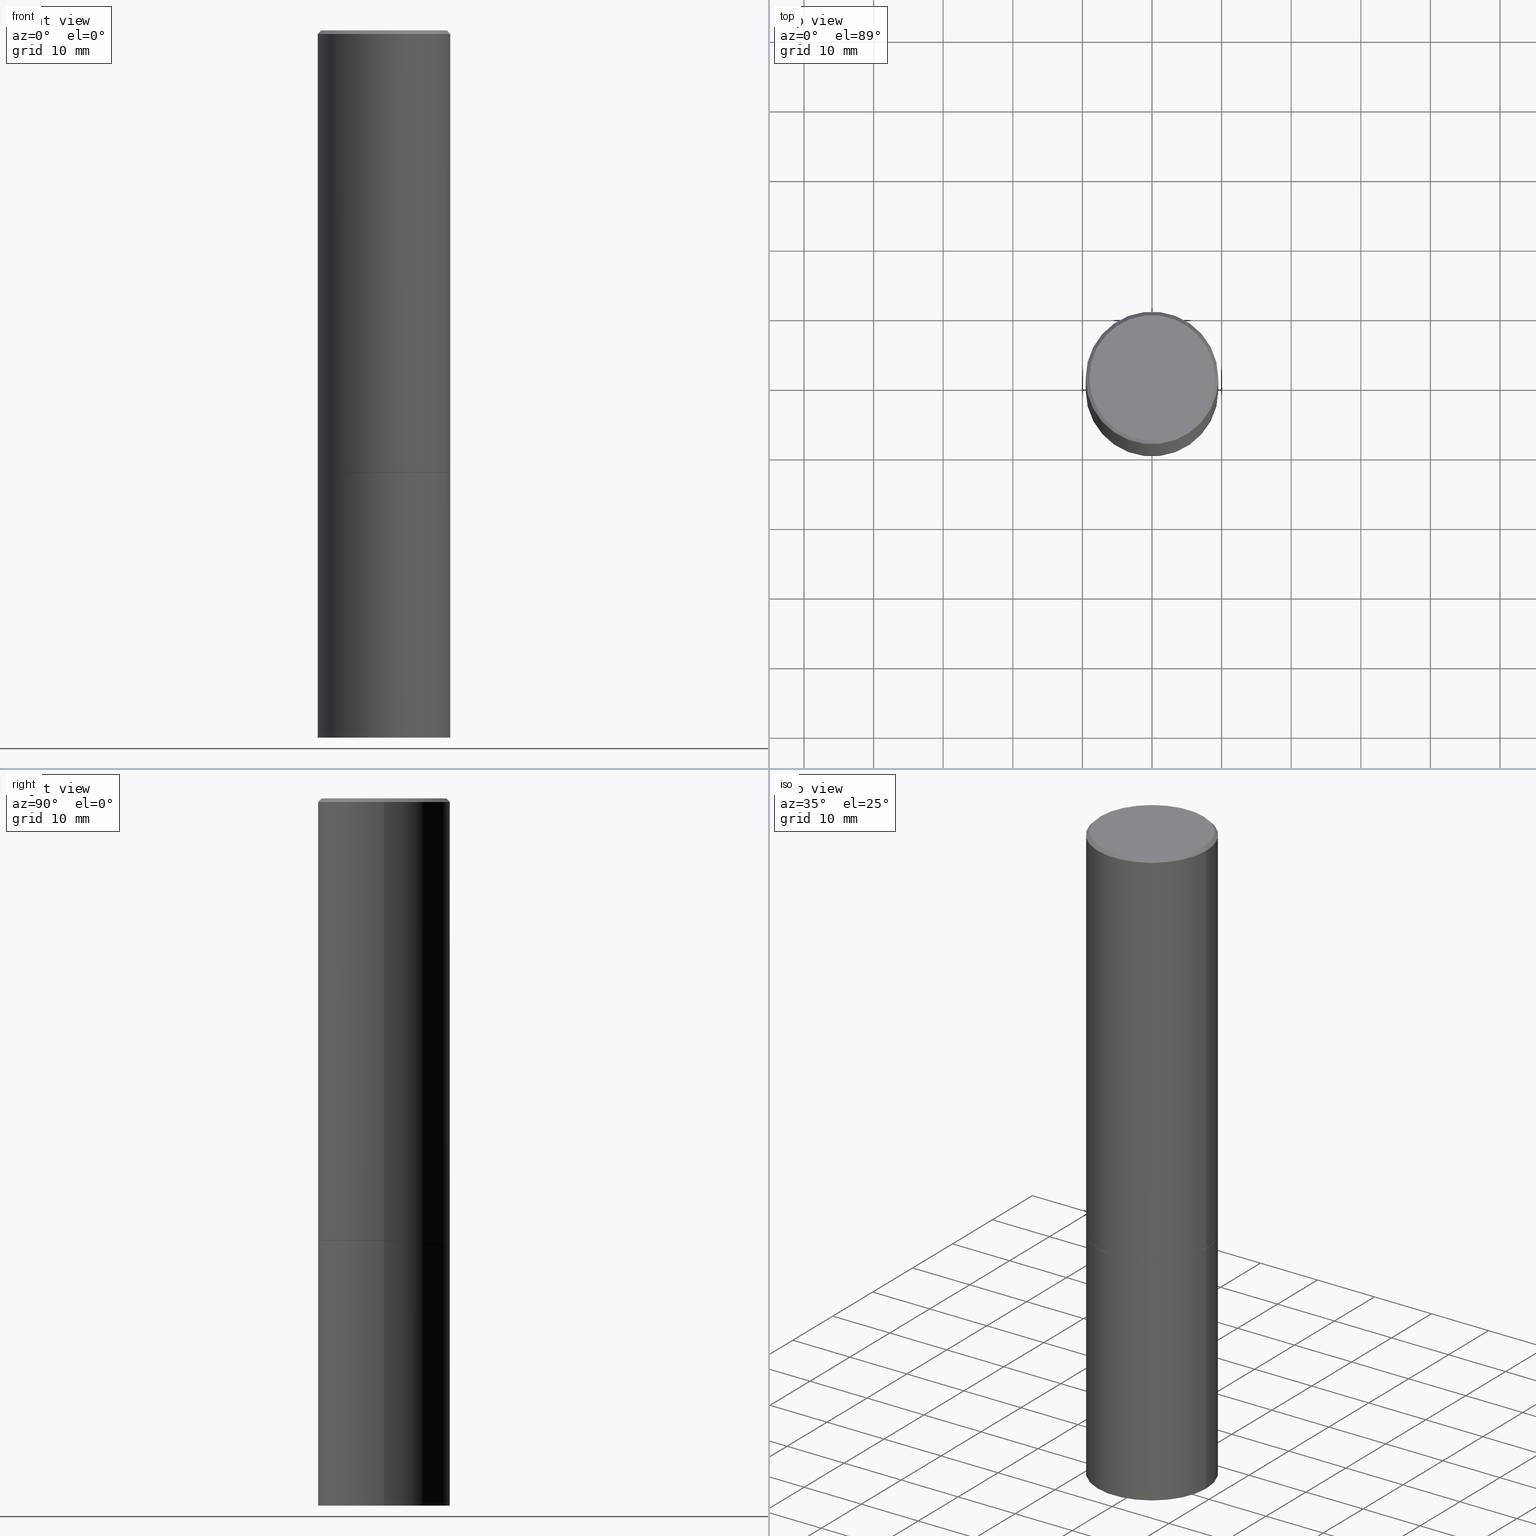
[diagram: canonical four-view strip — front | top / right | iso, engineering-drawing reading convention]
A machine part, canonical four-view strip (front | top / right | iso — engineering-drawing reading convention). The complete STEP part file that produces these views, byte-faithful:
ISO-10303-21;
HEADER;
FILE_DESCRIPTION (( 'STEP AP203' ),
    '1' );
FILE_NAME ('39071.STEP',
    '2023-03-21T20:50:16',
    ( '' ),
    ( '' ),
    'SwSTEP 2.0',
    'SolidWorks 2022',
    '' );
FILE_SCHEMA (( 'CONFIG_CONTROL_DESIGN' ));
ENDSEC;

DATA;
#1 = CIRCLE ( 'NONE', #192, 0.3749999999999997780 ) ;
#2 = EDGE_CURVE ( 'NONE', #250, #134, #180, .T. ) ;
#3 = ADVANCED_FACE ( 'NONE', ( #355 ), #309, .T. ) ;
#4 = CARTESIAN_POINT ( 'NONE',  ( 4.890937612370297681E-31, -6.982962677686324889E-17, -0.02000000000000009756 ) ) ;
#5 = EDGE_LOOP ( 'NONE', ( #73, #370, #233, #38 ) ) ;
#6 = ORIENTED_EDGE ( 'NONE', *, *, #2, .T. ) ;
#7 = AXIS2_PLACEMENT_3D ( 'NONE', #169, #75, #314 ) ;
#8 = CONICAL_SURFACE ( 'NONE', #66, 0.3739999999999999991, 0.7853981633975507526 ) ;
#9 = VERTEX_POINT ( 'NONE', #215 ) ;
#10 = PERSON_AND_ORGANIZATION_ROLE ( 'creator' ) ;
#11 = VERTEX_POINT ( 'NONE', #235 ) ;
#12 =( NAMED_UNIT ( * ) SI_UNIT ( $, .STERADIAN. ) SOLID_ANGLE_UNIT ( ) );
#13 = DIRECTION ( 'NONE',  ( -2.445468806185136597E-29, 3.491481338843145583E-15, 1.000000000000000000 ) ) ;
#14 = DIRECTION ( 'NONE',  ( 0.7071067811866199593, -2.468850131083015945E-15, 0.7071067811864750752 ) ) ;
#15 = CARTESIAN_POINT ( 'NONE',  ( -9.365030858990854092E-19, -1.389730756160623425E-14, -3.980347082768862066 ) ) ;
#16 = DIRECTION ( 'NONE',  ( -1.000000000000000000, 6.982962677686265922E-15, -4.876176775795935793E-29 ) ) ;
#17 = DATE_AND_TIME ( #177, #334 ) ;
#18 = FACE_OUTER_BOUND ( 'NONE', #70, .T. ) ;
#19 = AXIS2_PLACEMENT_3D ( 'NONE', #197, #166, #190 ) ;
#20 = FACE_OUTER_BOUND ( 'NONE', #175, .T. ) ;
#21 = CARTESIAN_POINT ( 'NONE',  ( 9.733160672091556656E-29, -1.389824406469223150E-14, -3.980347082768862066 ) ) ;
#22 = CYLINDRICAL_SURFACE ( 'NONE', #310, 0.3749999999999998890 ) ;
#23 = DIRECTION ( 'NONE',  ( -2.445468806185136597E-29, 3.491481338843145583E-15, 1.000000000000000000 ) ) ;
#24 = EDGE_CURVE ( 'NONE', #35, #250, #301, .T. ) ;
#25 = CARTESIAN_POINT ( 'NONE',  ( 0.3749999999999997780, -2.642516375941186056E-15, -0.02000000000000009756 ) ) ;
#26 = LINE ( 'NONE', #354, #128 ) ;
#27 = CARTESIAN_POINT ( 'NONE',  ( -0.3739999999999999991, -6.071273515365089465E-15, -2.500000000000000000 ) ) ;
#28 = LOCAL_TIME ( 16, 50, 16.00000000000000000, #213 ) ;
#29 = CARTESIAN_POINT ( 'NONE',  ( 0.3750000000000000555, -2.618611004132350016E-15, 1.828566290923476203E-29 ) ) ;
#30 = ORIENTED_EDGE ( 'NONE', *, *, #94, .T. ) ;
#31 = CONICAL_SURFACE ( 'NONE', #302, 0.3739999999999999991, 0.7853981633975507526 ) ;
#32 = EDGE_CURVE ( 'NONE', #250, #35, #308, .T. ) ;
#33 = DIRECTION ( 'NONE',  ( -2.445468806185136597E-29, 3.491481338843145583E-15, 1.000000000000000000 ) ) ;
#34 = DESIGN_CONTEXT ( 'detailed design', #159, 'design' ) ;
#35 = VERTEX_POINT ( 'NONE', #137 ) ;
#36 = ORIENTED_EDGE ( 'NONE', *, *, #165, .T. ) ;
#37 = AXIS2_PLACEMENT_3D ( 'NONE', #89, #13, #297 ) ;
#38 = ORIENTED_EDGE ( 'NONE', *, *, #369, .T. ) ;
#39 = PRODUCT_DEFINITION_SHAPE ( 'NONE', 'NONE',  #154 ) ;
#40 = ORIENTED_EDGE ( 'NONE', *, *, #24, .F. ) ;
#41 = VERTEX_POINT ( 'NONE', #344 ) ;
#42 = CARTESIAN_POINT ( 'NONE',  ( 6.111226546656657010E-29, -8.725211865769021935E-15, -2.499000000000000110 ) ) ;
#43 = AXIS2_PLACEMENT_3D ( 'NONE', #384, #96, #329 ) ;
#44 = ADVANCED_FACE ( 'NONE', ( #60 ), #202, .T. ) ;
#45 = APPLICATION_CONTEXT ( 'configuration controlled 3d designs of mechanical parts and assemblies' ) ;
#46 = DIRECTION ( 'NONE',  ( -2.445468806185136597E-29, 3.491481338843145583E-15, 1.000000000000000000 ) ) ;
#47 = APPROVAL_DATE_TIME ( #204, #71 ) ;
#48 = CARTESIAN_POINT ( 'NONE',  ( -0.3749999999999998890, 2.664535259100374908E-15, -1.844600658845589038E-29 ) ) ;
#49 = DIRECTION ( 'NONE',  ( 2.438088387897960049E-29, -3.491481338843145188E-15, -1.000000000000000000 ) ) ;
#50 = PERSON_AND_ORGANIZATION ( #109, #368 ) ;
#51 = CARTESIAN_POINT ( 'NONE',  ( 6.113672015462842613E-29, -8.728703347107864943E-15, -2.500000000000000000 ) ) ;
#52 = CARTESIAN_POINT ( 'NONE',  ( 9.781875224740546387E-29, -1.396592535537258233E-14, -4.000000000000000000 ) ) ;
#53 = ORIENTED_EDGE ( 'NONE', *, *, #220, .F. ) ;
#54 = DATE_AND_TIME ( #292, #28 ) ;
#55 = CIRCLE ( 'NONE', #216, 0.3549999999999997047 ) ;
#56 = DIRECTION ( 'NONE',  ( 1.000000000000000000, -6.982962677686265922E-15, 4.876176775795935793E-29 ) ) ;
#57 = AXIS2_PLACEMENT_3D ( 'NONE', #240, #58, #184 ) ;
#58 = DIRECTION ( 'NONE',  ( -2.445468806185136597E-29, 3.491481338843145583E-15, 1.000000000000000000 ) ) ;
#59 = ORIENTED_EDGE ( 'NONE', *, *, #99, .T. ) ;
#60 = FACE_OUTER_BOUND ( 'NONE', #304, .T. ) ;
#61 = APPROVAL ( #342, 'UNSPECIFIED' ) ;
#62 = CARTESIAN_POINT ( 'NONE',  ( 1.060121140848089932E-27, -1.513572027916513369E-13, -43.35042582292633995 ) ) ;
#63 = CARTESIAN_POINT ( 'NONE',  ( 0.000000000000000000, 0.000000000000000000, 0.000000000000000000 ) ) ;
#64 = CARTESIAN_POINT ( 'NONE',  ( 0.3750000000000000555, -1.134382286990137195E-14, -2.499000000000000110 ) ) ;
#65 = AXIS2_PLACEMENT_3D ( 'NONE', #85, #151, #214 ) ;
#66 = AXIS2_PLACEMENT_3D ( 'NONE', #51, #178, #142 ) ;
#67 = SECURITY_CLASSIFICATION ( '', '', #163 ) ;
#68 = ORIENTED_EDGE ( 'NONE', *, *, #147, .T. ) ;
#69 = VERTEX_POINT ( 'NONE', #150 ) ;
#70 = EDGE_LOOP ( 'NONE', ( #101, #77 ) ) ;
#71 = APPROVAL ( #265, 'UNSPECIFIED' ) ;
#72 = ORIENTED_EDGE ( 'NONE', *, *, #271, .T. ) ;
#73 = ORIENTED_EDGE ( 'NONE', *, *, #258, .F. ) ;
#74 = PERSON_AND_ORGANIZATION ( #109, #368 ) ;
#75 = DIRECTION ( 'NONE',  ( -2.445468806185136597E-29, 3.491481338843145583E-15, 1.000000000000000000 ) ) ;
#76 = DATE_AND_TIME ( #338, #303 ) ;
#77 = ORIENTED_EDGE ( 'NONE', *, *, #211, .F. ) ;
#78 = PERSON_AND_ORGANIZATION_ROLE ( 'creator' ) ;
#79 = VECTOR ( 'NONE', #88, 39.37007874015748143 ) ;
#80 = CIRCLE ( 'NONE', #280, 0.3549999999999997047 ) ;
#81 = DIRECTION ( 'NONE',  ( 1.000000000000000000, -6.982962677686268288E-15, 0.000000000000000000 ) ) ;
#82 = EDGE_LOOP ( 'NONE', ( #196, #72, #200, #249 ) ) ;
#83 =( NAMED_UNIT ( * ) PLANE_ANGLE_UNIT ( ) SI_UNIT ( $, .RADIAN. ) );
#84 = DIRECTION ( 'NONE',  ( -1.000000000000000000, 6.982962677686265922E-15, 0.000000000000000000 ) ) ;
#85 = CARTESIAN_POINT ( 'NONE',  ( 9.781875224740546387E-29, -1.396592535537258233E-14, -4.000000000000000000 ) ) ;
#86 = CARTESIAN_POINT ( 'NONE',  ( 4.890937612370297681E-31, -6.982962677686324889E-17, -0.02000000000000009756 ) ) ;
#87 = DIRECTION ( 'NONE',  ( 0.9986295347545742773, -7.033825938271997912E-15, -0.05233595624293664594 ) ) ;
#88 = DIRECTION ( 'NONE',  ( -2.445468806185136877E-29, 3.491481338843145188E-15, 1.000000000000000000 ) ) ;
#89 = CARTESIAN_POINT ( 'NONE',  ( 6.113672015462842613E-29, -8.728703347107864943E-15, -2.500000000000000000 ) ) ;
#90 = CC_DESIGN_PERSON_AND_ORGANIZATION_ASSIGNMENT ( #146, #107, ( #254 ) ) ;
#91 = AXIS2_PLACEMENT_3D ( 'NONE', #86, #325, #241 ) ;
#92 = VECTOR ( 'NONE', #179, 39.37007874015748143 ) ;
#93 = APPROVAL_PERSON_ORGANIZATION ( #230, #61, #278 ) ;
#94 = EDGE_CURVE ( 'NONE', #127, #250, #290, .T. ) ;
#95 = LINE ( 'NONE', #48, #102 ) ;
#96 = DIRECTION ( 'NONE',  ( -2.445468806185136597E-29, 3.491481338843145583E-15, 1.000000000000000000 ) ) ;
#97 = LINE ( 'NONE', #29, #182 ) ;
#98 = ORIENTED_EDGE ( 'NONE', *, *, #271, .F. ) ;
#99 = EDGE_CURVE ( 'NONE', #69, #41, #55, .T. ) ;
#100 = VERTEX_POINT ( 'NONE', #21 ) ;
#101 = ORIENTED_EDGE ( 'NONE', *, *, #313, .F. ) ;
#102 = VECTOR ( 'NONE', #377, 39.37007874015748143 ) ;
#103 = PERSON_AND_ORGANIZATION_ROLE ( 'classification_officer' ) ;
#104 = ORIENTED_EDGE ( 'NONE', *, *, #173, .T. ) ;
#105 = EDGE_LOOP ( 'NONE', ( #124, #209, #164, #53 ) ) ;
#106 = DIRECTION ( 'NONE',  ( -2.445468806185136597E-29, 3.491481338843145583E-15, 1.000000000000000000 ) ) ;
#107 = PERSON_AND_ORGANIZATION_ROLE ( 'design_owner' ) ;
#108 = CONICAL_SURFACE ( 'NONE', #19, 751.2258538476709191, 1.518436449235073926 ) ;
#109 = PERSON ( 'UNSPECIFIED', 'UNSPECIFIED', 'UNSPECIFIED', ('UNSPECIFIED'), ('UNSPECIFIED'), ('UNSPECIFIED') ) ;
#110 = LOCAL_TIME ( 16, 50, 16.00000000000000000, #374 ) ;
#111 = DIRECTION ( 'NONE',  ( -1.000000000000000000, 6.982962677686265922E-15, 0.000000000000000000 ) ) ;
#112 =( CONVERSION_BASED_UNIT ( 'INCH', #229 ) LENGTH_UNIT ( ) NAMED_UNIT ( #117 ) );
#113 = LINE ( 'NONE', #27, #349 ) ;
#114 = ORIENTED_EDGE ( 'NONE', *, *, #359, .F. ) ;
#115 = DIRECTION ( 'NONE',  ( 1.000000000000000000, -6.982962677686266711E-15, 4.876176775795935793E-29 ) ) ;
#116 = AXIS2_PLACEMENT_3D ( 'NONE', #4, #305, #283 ) ;
#117 = DIMENSIONAL_EXPONENTS ( 1.000000000000000000, 0.000000000000000000, 0.000000000000000000, 0.000000000000000000, 0.000000000000000000, 0.000000000000000000, 0.000000000000000000 ) ;
#118 = DIRECTION ( 'NONE',  ( 2.438088387897960049E-29, -3.491481338843145188E-15, -1.000000000000000000 ) ) ;
#119 = VECTOR ( 'NONE', #14, 39.37007874015748143 ) ;
#120 = CC_DESIGN_DATE_AND_TIME_ASSIGNMENT ( #76, #201, ( #67 ) ) ;
#121 = AXIS2_PLACEMENT_3D ( 'NONE', #293, #356, #111 ) ;
#122 = CALENDAR_DATE ( 2023, 21, 3 ) ;
#123 = ADVANCED_FACE ( 'NONE', ( #269 ), #388, .F. ) ;
#124 = ORIENTED_EDGE ( 'NONE', *, *, #358, .F. ) ;
#125 = ORIENTED_EDGE ( 'NONE', *, *, #286, .F. ) ;
#126 = EDGE_LOOP ( 'NONE', ( #98, #311, #30, #40 ) ) ;
#127 = VERTEX_POINT ( 'NONE', #145 ) ;
#128 = VECTOR ( 'NONE', #87, 39.37007874015748143 ) ;
#129 = ADVANCED_FACE ( 'NONE', ( #272 ), #260, .F. ) ;
#130 = PERSON_AND_ORGANIZATION ( #109, #368 ) ;
#131 = EDGE_LOOP ( 'NONE', ( #59, #381 ) ) ;
#132 = MANIFOLD_SOLID_BREP ( 'Body-Move/Copy2[1]', #245 ) ;
#133 = CARTESIAN_POINT ( 'NONE',  ( 6.113672015462842613E-29, -8.728703347107864943E-15, -2.500000000000000000 ) ) ;
#134 = VERTEX_POINT ( 'NONE', #365 ) ;
#135 = DIRECTION ( 'NONE',  ( -2.438088387897960049E-29, 3.491481338843145188E-15, 1.000000000000000000 ) ) ;
#136 = CARTESIAN_POINT ( 'NONE',  ( -0.3750000000000001665, -1.134731435124022916E-14, -4.000000000000000000 ) ) ;
#137 = CARTESIAN_POINT ( 'NONE',  ( -0.3750000000000000555, -1.732985487172564750E-15, -2.499000000000000110 ) ) ;
#138 = EDGE_CURVE ( 'NONE', #35, #224, #95, .T. ) ;
#139 = APPROVAL_DATE_TIME ( #17, #296 ) ;
#140 = CIRCLE ( 'NONE', #37, 0.3750000000000000555 ) ;
#141 = AXIS2_PLACEMENT_3D ( 'NONE', #187, #33, #160 ) ;
#142 = DIRECTION ( 'NONE',  ( 1.000000000000000000, -6.982962677686268288E-15, 0.000000000000000000 ) ) ;
#143 = CC_DESIGN_APPROVAL ( #296, ( #227 ) ) ;
#144 = DIRECTION ( 'NONE',  ( -0.9986295347545742773, 6.790662755453667677E-15, -0.05233595624293664594 ) ) ;
#145 = CARTESIAN_POINT ( 'NONE',  ( 0.3739999999999999991, -1.134033138856252894E-14, -2.500000000000000000 ) ) ;
#146 = PERSON_AND_ORGANIZATION ( #109, #368 ) ;
#147 = EDGE_CURVE ( 'NONE', #100, #167, #289, .T. ) ;
#148 = EDGE_LOOP ( 'NONE', ( #256, #36, #125, #228 ) ) ;
#149 = DIRECTION ( 'NONE',  ( -2.445468806185136597E-29, 3.491481338843145583E-15, 1.000000000000000000 ) ) ;
#150 = CARTESIAN_POINT ( 'NONE',  ( -0.3549999999999997047, 2.513866563967053491E-15, -1.745853245838993482E-29 ) ) ;
#151 = DIRECTION ( 'NONE',  ( -2.445468806185136597E-29, 3.491481338843145583E-15, 1.000000000000000000 ) ) ;
#152 = ADVANCED_FACE ( 'NONE', ( #387 ), #323, .T. ) ;
#153 =( GEOMETRIC_REPRESENTATION_CONTEXT ( 3 ) GLOBAL_UNCERTAINTY_ASSIGNED_CONTEXT ( ( #326 ) ) GLOBAL_UNIT_ASSIGNED_CONTEXT ( ( #112, #83, #12 ) ) REPRESENTATION_CONTEXT ( 'NONE', 'WORKASPACE' ) );
#154 = PRODUCT_DEFINITION ( 'UNKNOWN', '', #227, #34 ) ;
#155 = EDGE_LOOP ( 'NONE', ( #281, #282 ) ) ;
#156 = CC_DESIGN_PERSON_AND_ORGANIZATION_ASSIGNMENT ( #318, #78, ( #154 ) ) ;
#157 = FACE_OUTER_BOUND ( 'NONE', #148, .T. ) ;
#158 = CONICAL_SURFACE ( 'NONE', #121, 0.3749999999999997780, 0.7853981633974473908 ) ;
#159 = APPLICATION_CONTEXT ( 'configuration controlled 3d designs of mechanical parts and assemblies' ) ;
#160 = DIRECTION ( 'NONE',  ( 1.000000000000000000, -6.982962677686265922E-15, 4.876176775795935793E-29 ) ) ;
#161 = CARTESIAN_POINT ( 'NONE',  ( 4.890937612370297681E-31, -6.982962677686324889E-17, -0.02000000000000009756 ) ) ;
#162 = LOCAL_TIME ( 16, 50, 16.00000000000000000, #237 ) ;
#163 = SECURITY_CLASSIFICATION_LEVEL ( 'unclassified' ) ;
#164 = ORIENTED_EDGE ( 'NONE', *, *, #359, .T. ) ;
#165 = EDGE_CURVE ( 'NONE', #167, #9, #263, .T. ) ;
#166 = DIRECTION ( 'NONE',  ( 2.445468806185136597E-29, -3.491481338843145583E-15, -1.000000000000000000 ) ) ;
#167 = VERTEX_POINT ( 'NONE', #136 ) ;
#168 = EDGE_LOOP ( 'NONE', ( #222, #312, #346 ) ) ;
#169 = CARTESIAN_POINT ( 'NONE',  ( 6.111226546656657010E-29, -8.725211865769021935E-15, -2.499000000000000110 ) ) ;
#170 = AXIS2_PLACEMENT_3D ( 'NONE', #321, #317, #261 ) ;
#171 = APPLICATION_PROTOCOL_DEFINITION ( 'international standard', 'config_control_design', 1994, #159 ) ;
#172 = CARTESIAN_POINT ( 'NONE',  ( 0.000000000000000000, 0.000000000000000000, 0.000000000000000000 ) ) ;
#173 = EDGE_CURVE ( 'NONE', #167, #191, #324, .T. ) ;
#174 = CARTESIAN_POINT ( 'NONE',  ( -0.3739999999999999991, -6.065975061016867852E-15, -2.500000000000000000 ) ) ;
#175 = EDGE_LOOP ( 'NONE', ( #231, #279, #114, #284 ) ) ;
#176 = EDGE_CURVE ( 'NONE', #9, #11, #140, .T. ) ;
#177 = CALENDAR_DATE ( 2023, 21, 3 ) ;
#178 = DIRECTION ( 'NONE',  ( -2.445468806185136597E-29, 3.491481338843145583E-15, 1.000000000000000000 ) ) ;
#179 = DIRECTION ( 'NONE',  ( -2.445468806185136877E-29, 3.491481338843145188E-15, 1.000000000000000000 ) ) ;
#180 = LINE ( 'NONE', #298, #79 ) ;
#181 = DATE_TIME_ROLE ( 'creation_date' ) ;
#182 = VECTOR ( 'NONE', #246, 39.37007874015748143 ) ;
#183 = CARTESIAN_POINT ( 'NONE',  ( 6.113672015462842613E-29, -8.728703347107864943E-15, -2.500000000000000000 ) ) ;
#184 = DIRECTION ( 'NONE',  ( 1.000000000000000000, -6.982962677686266711E-15, 4.876176775795935793E-29 ) ) ;
#185 = DIRECTION ( 'NONE',  ( 0.7071067811865469066, -7.319954787623254468E-15, -0.7071067811865482389 ) ) ;
#186 = EDGE_LOOP ( 'NONE', ( #252, #68, #337 ) ) ;
#187 = CARTESIAN_POINT ( 'NONE',  ( 0.000000000000000000, 0.000000000000000000, 0.000000000000000000 ) ) ;
#188 = DIRECTION ( 'NONE',  ( -1.000000000000000000, 6.982962677686265922E-15, -4.876176775795935793E-29 ) ) ;
#189 = ADVANCED_FACE ( 'NONE', ( #20 ), #22, .T. ) ;
#190 = DIRECTION ( 'NONE',  ( -1.000000000000000000, 6.982962677686265922E-15, 0.000000000000000000 ) ) ;
#191 = VERTEX_POINT ( 'NONE', #206 ) ;
#192 = AXIS2_PLACEMENT_3D ( 'NONE', #161, #225, #373 ) ;
#193 = ADVANCED_FACE ( 'NONE', ( #379 ), #158, .T. ) ;
#194 = CC_DESIGN_SECURITY_CLASSIFICATION ( #67, ( #227 ) ) ;
#195 = SHAPE_DEFINITION_REPRESENTATION ( #39, #375 ) ;
#196 = ORIENTED_EDGE ( 'NONE', *, *, #313, .T. ) ;
#197 = CARTESIAN_POINT ( 'NONE',  ( 1.060121140848089932E-27, -1.513572027916513369E-13, -43.35042582292633995 ) ) ;
#198 = PERSON_AND_ORGANIZATION_ROLE ( 'design_supplier' ) ;
#199 = CC_DESIGN_PERSON_AND_ORGANIZATION_ASSIGNMENT ( #74, #103, ( #67 ) ) ;
#200 = ORIENTED_EDGE ( 'NONE', *, *, #32, .F. ) ;
#201 = DATE_TIME_ROLE ( 'classification_date' ) ;
#202 = CYLINDRICAL_SURFACE ( 'NONE', #340, 0.3750000000000000555 ) ;
#203 = CC_DESIGN_APPROVAL ( #71, ( #154 ) ) ;
#204 = DATE_AND_TIME ( #382, #162 ) ;
#205 = ADVANCED_FACE ( 'NONE', ( #327 ), #31, .T. ) ;
#206 = CARTESIAN_POINT ( 'NONE',  ( 0.3750000000000001665, -1.653861210453690509E-14, -4.000000000000000000 ) ) ;
#207 = MECHANICAL_CONTEXT ( 'NONE', #45, 'mechanical' ) ;
#208 = FACE_OUTER_BOUND ( 'NONE', #186, .T. ) ;
#209 = ORIENTED_EDGE ( 'NONE', *, *, #258, .T. ) ;
#210 = DIRECTION ( 'NONE',  ( 1.000000000000000000, -6.982962677686268288E-15, 0.000000000000000000 ) ) ;
#211 = EDGE_CURVE ( 'NONE', #243, #127, #270, .T. ) ;
#212 = CARTESIAN_POINT ( 'NONE',  ( 0.3739999999999999991, -1.134033138856252894E-14, -2.500000000000000000 ) ) ;
#213 = COORDINATED_UNIVERSAL_TIME_OFFSET ( 5, 0, .BEHIND. ) ;
#214 = DIRECTION ( 'NONE',  ( 1.000000000000000000, -6.982962677686266711E-15, 0.000000000000000000 ) ) ;
#215 = CARTESIAN_POINT ( 'NONE',  ( -0.3750000000000000555, -8.682779092139847151E-15, -2.500000000000000000 ) ) ;
#216 = AXIS2_PLACEMENT_3D ( 'NONE', #264, #106, #274 ) ;
#217 = EDGE_CURVE ( 'NONE', #100, #191, #26, .T. ) ;
#218 = VECTOR ( 'NONE', #232, 39.37007874015748143 ) ;
#219 = EDGE_CURVE ( 'NONE', #191, #167, #255, .T. ) ;
#220 = EDGE_CURVE ( 'NONE', #69, #224, #275, .T. ) ;
#221 = AXIS2_PLACEMENT_3D ( 'NONE', #183, #266, #239 ) ;
#222 = ORIENTED_EDGE ( 'NONE', *, *, #147, .F. ) ;
#223 = COORDINATED_UNIVERSAL_TIME_OFFSET ( 5, 0, .BEHIND. ) ;
#224 = VERTEX_POINT ( 'NONE', #345 ) ;
#225 = DIRECTION ( 'NONE',  ( -2.445468806185136597E-29, 3.491481338843145583E-15, 1.000000000000000000 ) ) ;
#226 = CC_DESIGN_PERSON_AND_ORGANIZATION_ASSIGNMENT ( #130, #10, ( #227 ) ) ;
#227 = PRODUCT_DEFINITION_FORMATION_WITH_SPECIFIED_SOURCE ( 'ANY', '', #254, .NOT_KNOWN. ) ;
#228 = ORIENTED_EDGE ( 'NONE', *, *, #328, .F. ) ;
#229 = LENGTH_MEASURE_WITH_UNIT ( LENGTH_MEASURE( 0.02539999999999999897 ), #251 );
#230 = PERSON_AND_ORGANIZATION ( #109, #368 ) ;
#231 = ORIENTED_EDGE ( 'NONE', *, *, #32, .T. ) ;
#232 = DIRECTION ( 'NONE',  ( -0.7071067811865469066, 2.468850131082249961E-15, -0.7071067811865482389 ) ) ;
#233 = ORIENTED_EDGE ( 'NONE', *, *, #220, .T. ) ;
#234 = APPLICATION_PROTOCOL_DEFINITION ( 'international standard', 'config_control_design', 1994, #45 ) ;
#235 = CARTESIAN_POINT ( 'NONE',  ( 0.3750000000000000555, -1.134731435124021338E-14, -2.500000000000000000 ) ) ;
#236 = CONICAL_SURFACE ( 'NONE', #357, 751.2258538476709191, 1.518436449235073926 ) ;
#237 = COORDINATED_UNIVERSAL_TIME_OFFSET ( 5, 0, .BEHIND. ) ;
#238 = ADVANCED_FACE ( 'NONE', ( #157 ), #360, .T. ) ;
#239 = DIRECTION ( 'NONE',  ( 1.000000000000000000, -6.982962677686264344E-15, 0.000000000000000000 ) ) ;
#240 = CARTESIAN_POINT ( 'NONE',  ( 0.000000000000000000, 0.000000000000000000, 0.000000000000000000 ) ) ;
#241 = DIRECTION ( 'NONE',  ( -1.000000000000000000, 6.982962677686265922E-15, 0.000000000000000000 ) ) ;
#242 = DIRECTION ( 'NONE',  ( -2.445468806185136597E-29, 3.491481338843145583E-15, 1.000000000000000000 ) ) ;
#243 = VERTEX_POINT ( 'NONE', #174 ) ;
#244 = DIRECTION ( 'NONE',  ( -0.7071067811866199593, 7.493145998870616062E-15, 0.7071067811864750752 ) ) ;
#245 = CLOSED_SHELL ( 'NONE', ( #238, #366, #248, #44, #129 ) ) ;
#246 = DIRECTION ( 'NONE',  ( -2.445468806185136877E-29, 3.491481338843145188E-15, 1.000000000000000000 ) ) ;
#247 = CIRCLE ( 'NONE', #116, 0.3749999999999997780 ) ;
#248 = ADVANCED_FACE ( 'NONE', ( #208 ), #236, .F. ) ;
#249 = ORIENTED_EDGE ( 'NONE', *, *, #94, .F. ) ;
#250 = VERTEX_POINT ( 'NONE', #64 ) ;
#251 =( LENGTH_UNIT ( ) NAMED_UNIT ( * ) SI_UNIT ( $, .METRE. ) );
#252 = ORIENTED_EDGE ( 'NONE', *, *, #217, .F. ) ;
#253 = ORIENTED_EDGE ( 'NONE', *, *, #176, .F. ) ;
#254 = PRODUCT ( '39071', '39071', '', ( #207 ) ) ;
#255 = CIRCLE ( 'NONE', #65, 0.3750000000000000555 ) ;
#256 = ORIENTED_EDGE ( 'NONE', *, *, #219, .T. ) ;
#257 = DIRECTION ( 'NONE',  ( 1.000000000000000000, -6.982962677686265922E-15, 4.876176775795935793E-29 ) ) ;
#258 = EDGE_CURVE ( 'NONE', #41, #134, #322, .T. ) ;
#259 = PERSON_AND_ORGANIZATION ( #109, #368 ) ;
#260 = PLANE ( 'NONE',  #333 ) ;
#261 = DIRECTION ( 'NONE',  ( 1.000000000000000000, 0.000000000000000000, 0.000000000000000000 ) ) ;
#262 = PLANE ( 'NONE',  #341 ) ;
#263 = LINE ( 'NONE', #385, #92 ) ;
#264 = CARTESIAN_POINT ( 'NONE',  ( 0.000000000000000000, 0.000000000000000000, 0.000000000000000000 ) ) ;
#265 = APPROVAL_STATUS ( 'not_yet_approved' ) ;
#266 = DIRECTION ( 'NONE',  ( -2.445468806185136597E-29, 3.491481338843145583E-15, 1.000000000000000000 ) ) ;
#267 = ORIENTED_EDGE ( 'NONE', *, *, #369, .F. ) ;
#268 = DIRECTION ( 'NONE',  ( 1.000000000000000000, -6.982962677686266711E-15, 0.000000000000000000 ) ) ;
#269 = FACE_OUTER_BOUND ( 'NONE', #131, .T. ) ;
#270 = CIRCLE ( 'NONE', #316, 0.3739999999999999991 ) ;
#271 = EDGE_CURVE ( 'NONE', #243, #35, #113, .T. ) ;
#272 = FACE_OUTER_BOUND ( 'NONE', #155, .T. ) ;
#273 = DIRECTION ( 'NONE',  ( -2.445468806185136597E-29, 3.491481338843145583E-15, 1.000000000000000000 ) ) ;
#274 = DIRECTION ( 'NONE',  ( 1.000000000000000000, -6.982962677686265922E-15, 4.876176775795935793E-29 ) ) ;
#275 = LINE ( 'NONE', #389, #218 ) ;
#276 = APPROVAL_PERSON_ORGANIZATION ( #315, #296, #288 ) ;
#277 = DIRECTION ( 'NONE',  ( -2.445468806185136597E-29, 3.491481338843145583E-15, 1.000000000000000000 ) ) ;
#278 = APPROVAL_ROLE ( '' ) ;
#279 = ORIENTED_EDGE ( 'NONE', *, *, #138, .T. ) ;
#280 = AXIS2_PLACEMENT_3D ( 'NONE', #390, #277, #257 ) ;
#281 = ORIENTED_EDGE ( 'NONE', *, *, #286, .T. ) ;
#282 = ORIENTED_EDGE ( 'NONE', *, *, #176, .T. ) ;
#283 = DIRECTION ( 'NONE',  ( 1.000000000000000000, -6.982962677686265922E-15, 0.000000000000000000 ) ) ;
#284 = ORIENTED_EDGE ( 'NONE', *, *, #2, .F. ) ;
#285 = ADVANCED_FACE ( 'NONE', ( #18 ), #262, .F. ) ;
#286 = EDGE_CURVE ( 'NONE', #11, #9, #362, .T. ) ;
#287 = CIRCLE ( 'NONE', #43, 0.3739999999999999991 ) ;
#288 = APPROVAL_ROLE ( '' ) ;
#289 = LINE ( 'NONE', #15, #294 ) ;
#290 = LINE ( 'NONE', #212, #119 ) ;
#291 = APPROVAL_STATUS ( 'not_yet_approved' ) ;
#292 = CALENDAR_DATE ( 2023, 21, 3 ) ;
#293 = CARTESIAN_POINT ( 'NONE',  ( 4.890937612370297681E-31, -6.982962677686324889E-17, -0.02000000000000009756 ) ) ;
#294 = VECTOR ( 'NONE', #144, 39.37007874015748143 ) ;
#295 = DIRECTION ( 'NONE',  ( 1.000000000000000000, -6.982962677686265922E-15, 4.876176775795935793E-29 ) ) ;
#296 = APPROVAL ( #291, 'UNSPECIFIED' ) ;
#297 = DIRECTION ( 'NONE',  ( 1.000000000000000000, -6.982962677686264344E-15, 0.000000000000000000 ) ) ;
#298 = CARTESIAN_POINT ( 'NONE',  ( 0.3749999999999998890, -2.618611004132349228E-15, 1.828566290923475362E-29 ) ) ;
#299 = DIRECTION ( 'NONE',  ( 2.445468806185136597E-29, -3.491481338843145583E-15, -1.000000000000000000 ) ) ;
#300 = AXIS2_PLACEMENT_3D ( 'NONE', #52, #149, #268 ) ;
#301 = CIRCLE ( 'NONE', #7, 0.3750000000000000555 ) ;
#302 = AXIS2_PLACEMENT_3D ( 'NONE', #133, #348, #81 ) ;
#303 = LOCAL_TIME ( 16, 50, 16.00000000000000000, #223 ) ;
#304 = EDGE_LOOP ( 'NONE', ( #335, #104, #350, #253 ) ) ;
#305 = DIRECTION ( 'NONE',  ( -2.445468806185136597E-29, 3.491481338843145583E-15, 1.000000000000000000 ) ) ;
#306 = ADVANCED_FACE ( 'NONE', ( #319 ), #8, .T. ) ;
#307 = EDGE_LOOP ( 'NONE', ( #367, #343, #6, #267 ) ) ;
#308 = CIRCLE ( 'NONE', #361, 0.3750000000000000555 ) ;
#309 = CONICAL_SURFACE ( 'NONE', #91, 0.3749999999999997780, 0.7853981633974473908 ) ;
#310 = AXIS2_PLACEMENT_3D ( 'NONE', #63, #273, #115 ) ;
#311 = ORIENTED_EDGE ( 'NONE', *, *, #211, .T. ) ;
#312 = ORIENTED_EDGE ( 'NONE', *, *, #217, .T. ) ;
#313 = EDGE_CURVE ( 'NONE', #127, #243, #287, .T. ) ;
#314 = DIRECTION ( 'NONE',  ( 1.000000000000000000, -6.982962677686264344E-15, 0.000000000000000000 ) ) ;
#315 = PERSON_AND_ORGANIZATION ( #109, #368 ) ;
#316 = AXIS2_PLACEMENT_3D ( 'NONE', #351, #242, #210 ) ;
#317 = DIRECTION ( 'NONE',  ( 0.000000000000000000, 0.000000000000000000, 1.000000000000000000 ) ) ;
#318 = PERSON_AND_ORGANIZATION ( #109, #368 ) ;
#319 = FACE_OUTER_BOUND ( 'NONE', #126, .T. ) ;
#320 = CARTESIAN_POINT ( 'NONE',  ( 2.478951750578622237E-15, 0.3549999999999997047, -1.239475875289315654E-15 ) ) ;
#321 = CARTESIAN_POINT ( 'NONE',  ( 0.000000000000000000, 0.000000000000000000, 0.000000000000000000 ) ) ;
#322 = LINE ( 'NONE', #25, #363 ) ;
#323 = CYLINDRICAL_SURFACE ( 'NONE', #57, 0.3749999999999998890 ) ;
#324 = CIRCLE ( 'NONE', #300, 0.3750000000000000555 ) ;
#325 = DIRECTION ( 'NONE',  ( 2.445468806185136597E-29, -3.491481338843145583E-15, -1.000000000000000000 ) ) ;
#326 = UNCERTAINTY_MEASURE_WITH_UNIT (LENGTH_MEASURE( 1.000000000000000082E-05 ), #112, 'distance_accuracy_value', 'NONE');
#327 = FACE_OUTER_BOUND ( 'NONE', #82, .T. ) ;
#328 = EDGE_CURVE ( 'NONE', #191, #11, #97, .T. ) ;
#329 = DIRECTION ( 'NONE',  ( 1.000000000000000000, -6.982962677686268288E-15, 0.000000000000000000 ) ) ;
#330 = CLOSED_SHELL ( 'NONE', ( #205, #189, #193, #3, #152, #306, #285, #123 ) ) ;
#331 = APPROVAL_PERSON_ORGANIZATION ( #50, #71, #347 ) ;
#332 = CC_DESIGN_PERSON_AND_ORGANIZATION_ASSIGNMENT ( #259, #198, ( #227 ) ) ;
#333 = AXIS2_PLACEMENT_3D ( 'NONE', #386, #118, #188 ) ;
#334 = LOCAL_TIME ( 16, 50, 16.00000000000000000, #378 ) ;
#335 = ORIENTED_EDGE ( 'NONE', *, *, #165, .F. ) ;
#336 = DATE_AND_TIME ( #122, #110 ) ;
#337 = ORIENTED_EDGE ( 'NONE', *, *, #219, .F. ) ;
#338 = CALENDAR_DATE ( 2023, 21, 3 ) ;
#339 = FACE_OUTER_BOUND ( 'NONE', #168, .T. ) ;
#340 = AXIS2_PLACEMENT_3D ( 'NONE', #172, #23, #295 ) ;
#341 = AXIS2_PLACEMENT_3D ( 'NONE', #376, #135, #56 ) ;
#342 = APPROVAL_STATUS ( 'not_yet_approved' ) ;
#343 = ORIENTED_EDGE ( 'NONE', *, *, #24, .T. ) ;
#344 = CARTESIAN_POINT ( 'NONE',  ( 0.3549999999999997047, -2.538996582575039076E-15, 1.754627344940449403E-29 ) ) ;
#345 = CARTESIAN_POINT ( 'NONE',  ( -0.3749999999999997780, 2.548781377355484746E-15, -0.02000000000000009756 ) ) ;
#346 = ORIENTED_EDGE ( 'NONE', *, *, #173, .F. ) ;
#347 = APPROVAL_ROLE ( '' ) ;
#348 = DIRECTION ( 'NONE',  ( -2.445468806185136597E-29, 3.491481338843145583E-15, 1.000000000000000000 ) ) ;
#349 = VECTOR ( 'NONE', #244, 39.37007874015748143 ) ;
#350 = ORIENTED_EDGE ( 'NONE', *, *, #328, .T. ) ;
#351 = CARTESIAN_POINT ( 'NONE',  ( 6.113672015462842613E-29, -8.728703347107864943E-15, -2.500000000000000000 ) ) ;
#352 = DIRECTION ( 'NONE',  ( 1.000000000000000000, -6.982962677686264344E-15, 0.000000000000000000 ) ) ;
#353 = MANIFOLD_SOLID_BREP ( 'Body-Move/Copy2[2]', #330 ) ;
#354 = CARTESIAN_POINT ( 'NONE',  ( 9.365030860937616821E-19, -1.389730756160623425E-14, -3.980347082768862066 ) ) ;
#355 = FACE_OUTER_BOUND ( 'NONE', #5, .T. ) ;
#356 = DIRECTION ( 'NONE',  ( 2.445468806185136597E-29, -3.491481338843145583E-15, -1.000000000000000000 ) ) ;
#357 = AXIS2_PLACEMENT_3D ( 'NONE', #62, #299, #84 ) ;
#358 = EDGE_CURVE ( 'NONE', #41, #69, #80, .T. ) ;
#359 = EDGE_CURVE ( 'NONE', #134, #224, #1, .T. ) ;
#360 = CYLINDRICAL_SURFACE ( 'NONE', #141, 0.3750000000000000555 ) ;
#361 = AXIS2_PLACEMENT_3D ( 'NONE', #42, #46, #352 ) ;
#362 = CIRCLE ( 'NONE', #221, 0.3750000000000000555 ) ;
#363 = VECTOR ( 'NONE', #185, 39.37007874015748143 ) ;
#364 = CC_DESIGN_APPROVAL ( #61, ( #67 ) ) ;
#365 = CARTESIAN_POINT ( 'NONE',  ( 0.3749999999999997780, -2.642516375941186056E-15, -0.02000000000000009756 ) ) ;
#366 = ADVANCED_FACE ( 'NONE', ( #339 ), #108, .F. ) ;
#367 = ORIENTED_EDGE ( 'NONE', *, *, #138, .F. ) ;
#368 = ORGANIZATION ( 'UNSPECIFIED', 'UNSPECIFIED', '' ) ;
#369 = EDGE_CURVE ( 'NONE', #224, #134, #247, .T. ) ;
#370 = ORIENTED_EDGE ( 'NONE', *, *, #99, .F. ) ;
#371 = PRODUCT_RELATED_PRODUCT_CATEGORY ( 'detail', '', ( #254 ) ) ;
#372 = APPROVAL_DATE_TIME ( #336, #61 ) ;
#373 = DIRECTION ( 'NONE',  ( 1.000000000000000000, -6.982962677686265922E-15, 0.000000000000000000 ) ) ;
#374 = COORDINATED_UNIVERSAL_TIME_OFFSET ( 5, 0, .BEHIND. ) ;
#375 = ADVANCED_BREP_SHAPE_REPRESENTATION ( '39071', ( #132, #353, #170 ), #153 ) ;
#376 = CARTESIAN_POINT ( 'NONE',  ( 6.113672015462842613E-29, -8.728703347107864943E-15, -2.500000000000000000 ) ) ;
#377 = DIRECTION ( 'NONE',  ( -2.445468806185136877E-29, 3.491481338843145188E-15, 1.000000000000000000 ) ) ;
#378 = COORDINATED_UNIVERSAL_TIME_OFFSET ( 5, 0, .BEHIND. ) ;
#379 = FACE_OUTER_BOUND ( 'NONE', #105, .T. ) ;
#380 = AXIS2_PLACEMENT_3D ( 'NONE', #320, #49, #16 ) ;
#381 = ORIENTED_EDGE ( 'NONE', *, *, #358, .T. ) ;
#382 = CALENDAR_DATE ( 2023, 21, 3 ) ;
#383 = CC_DESIGN_DATE_AND_TIME_ASSIGNMENT ( #54, #181, ( #154 ) ) ;
#384 = CARTESIAN_POINT ( 'NONE',  ( 6.113672015462842613E-29, -8.728703347107864943E-15, -2.500000000000000000 ) ) ;
#385 = CARTESIAN_POINT ( 'NONE',  ( -0.3750000000000000555, 2.664535259100376091E-15, -1.844600658845589598E-29 ) ) ;
#386 = CARTESIAN_POINT ( 'NONE',  ( 2.618611004132411153E-15, 0.3749999999999912847, -2.500000000000001332 ) ) ;
#387 = FACE_OUTER_BOUND ( 'NONE', #307, .T. ) ;
#388 = PLANE ( 'NONE',  #380 ) ;
#389 = CARTESIAN_POINT ( 'NONE',  ( -0.3749999999999997780, 2.548781377355484746E-15, -0.02000000000000009756 ) ) ;
#390 = CARTESIAN_POINT ( 'NONE',  ( 0.000000000000000000, 0.000000000000000000, 0.000000000000000000 ) ) ;
ENDSEC;
END-ISO-10303-21;
